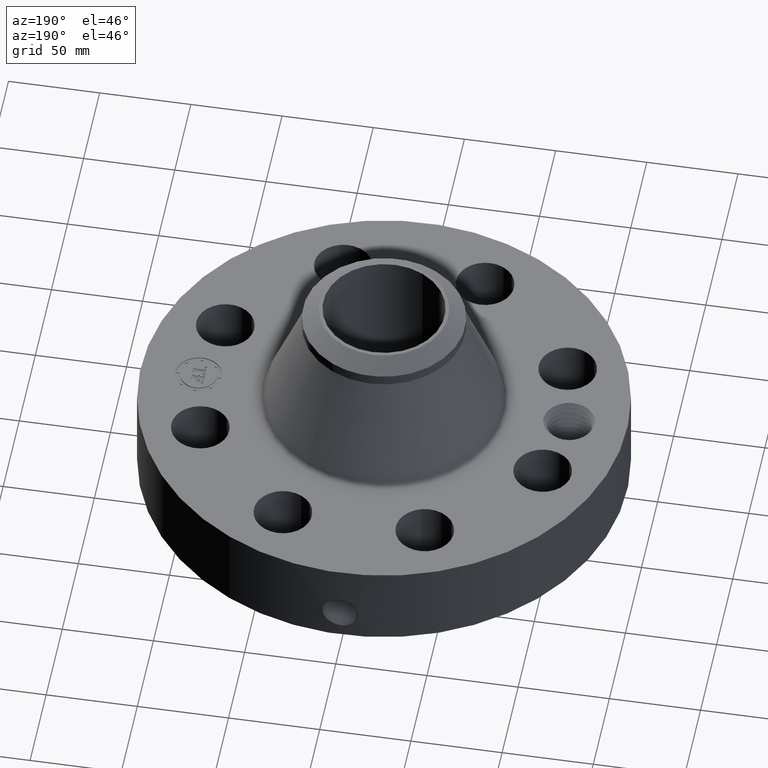
[diagram: clean part render]
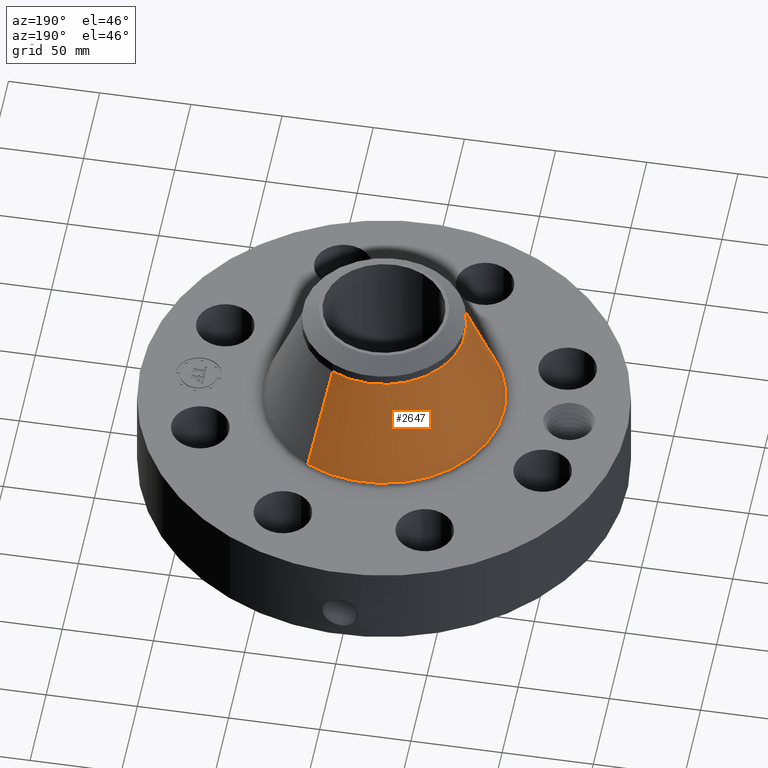
[diagram: same view with one face highlighted and labeled with its STEP entity id]
A machine part, auxiliary view. The second image highlights one B-rep face of the part: STEP entity #2647.
In plain terms, the highlighted conical surface has half-angle 21.44 deg.
Its self-contained STEP definition (entity closure, byte-faithful):
#1911=AXIS2_PLACEMENT_3D('Circle Axis2P3D',#1909,#1910,$) ;
#2608=AXIS2_PLACEMENT_3D('Cone Axis2P3D',#2605,#2606,#2607) ;
#2638=AXIS2_PLACEMENT_3D('Circle Axis2P3D',#2636,#2637,$) ;
#1887=CARTESIAN_POINT('Vertex',(1.24415753478,2.27741509129,2.20613599613)) ;
#1894=CARTESIAN_POINT('Vertex',(-1.24415753478,-2.27741509129,2.20613599613)) ;
#1909=CARTESIAN_POINT('Axis2P3D Location',(0.,0.,2.20613599613)) ;
#2605=CARTESIAN_POINT('Axis2P3D Location',(0.,0.,4.35810975471)) ;
#2610=CARTESIAN_POINT('Line Origine',(1.04157611367,1.9065922873,3.28212287542)) ;
#2614=CARTESIAN_POINT('Vertex',(0.838994692561,1.53576948331,4.35810975471)) ;
#2621=CARTESIAN_POINT('Vertex',(-0.838994692561,-1.53576948331,4.35810975471)) ;
#2624=CARTESIAN_POINT('Line Origine',(-1.04157611367,-1.9065922873,3.28212287542)) ;
#2636=CARTESIAN_POINT('Axis2P3D Location',(0.,0.,4.35810975471)) ;
#1910=DIRECTION('Axis2P3D Direction',(0.,0.,-0.0393700787402)) ;
#2606=DIRECTION('Axis2P3D Direction',(0.,0.,-0.0393700787402)) ;
#2607=DIRECTION('Axis2P3D XDirection',(-0.0188750212049,-0.0345504945626,0.)) ;
#2611=DIRECTION('Vector Direction',(0.00689945002761,0.0126293585621,-0.0366455998946)) ;
#2625=DIRECTION('Vector Direction',(-0.00689945002761,-0.0126293585621,-0.0366455998946)) ;
#2637=DIRECTION('Axis2P3D Direction',(0.,0.,-0.0393700787402)) ;
#2612=VECTOR('Line Direction',#2611,0.0393700787402) ;
#2626=VECTOR('Line Direction',#2625,0.0393700787402) ;
#2642=ORIENTED_EDGE('',*,*,#1913,.F.) ;
#2643=ORIENTED_EDGE('',*,*,#2628,.T.) ;
#2644=ORIENTED_EDGE('',*,*,#2640,.T.) ;
#2645=ORIENTED_EDGE('',*,*,#2616,.F.) ;
#2647=ADVANCED_FACE('PartBody',(#2646),#2609,.T.) ;
#1912=CIRCLE('generated circle',#1911,2.59510066652) ;
#2639=CIRCLE('generated circle',#2638,1.75000000001) ;
#2609=CONICAL_SURFACE('Cone',#2608,1.75000000001,0.374205758258) ;
#1913=EDGE_CURVE('',#1895,#1888,#1912,.T.) ;
#2616=EDGE_CURVE('',#1888,#2615,#2613,.F.) ;
#2628=EDGE_CURVE('',#1895,#2622,#2627,.F.) ;
#2640=EDGE_CURVE('',#2622,#2615,#2639,.T.) ;
#2641=EDGE_LOOP('',(#2642,#2643,#2644,#2645)) ;
#2646=FACE_OUTER_BOUND('',#2641,.T.) ;
#2613=LINE('Line',#2610,#2612) ;
#2627=LINE('Line',#2624,#2626) ;
#1888=VERTEX_POINT('',#1887) ;
#1895=VERTEX_POINT('',#1894) ;
#2615=VERTEX_POINT('',#2614) ;
#2622=VERTEX_POINT('',#2621) ;